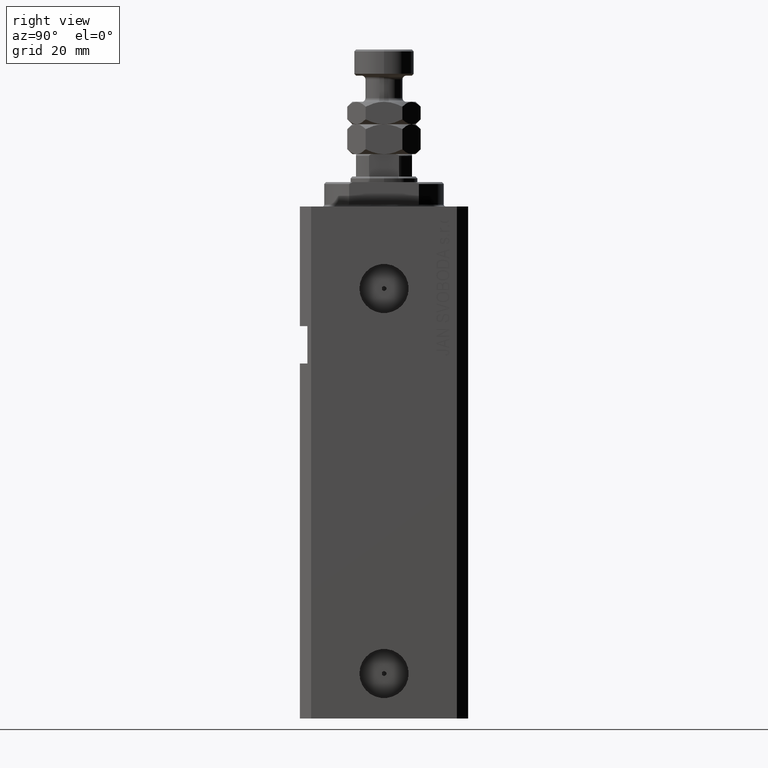
[diagram: clean part render]
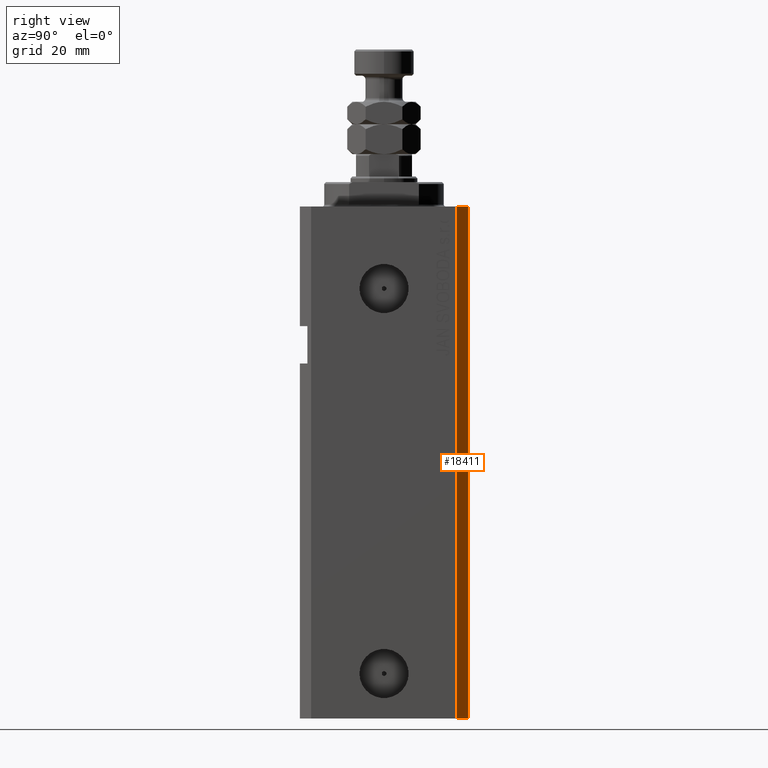
[diagram: same view with one face highlighted and labeled with its STEP entity id]
A machine part, right view. The second image highlights one B-rep face of the part: STEP entity #18411.
In plain terms, the highlighted planar face has unit normal (0.7071, 0.7071, 0).
Its self-contained STEP definition (entity closure, byte-faithful):
#1038 = DIRECTION ( 'NONE',  ( 0.000000000000000000, 0.000000000000000000, 1.000000000000000000 ) ) ;
#2325 = VECTOR ( 'NONE', #1038, 1000.000000000000000 ) ;
#3137 = LINE ( 'NONE', #17099, #11484 ) ;
#5776 = ORIENTED_EDGE ( 'NONE', *, *, #6731, .F. ) ;
#6731 = EDGE_CURVE ( 'NONE', #15034, #10424, #10962, .T. ) ;
#7275 = ORIENTED_EDGE ( 'NONE', *, *, #9339, .F. ) ;
#7629 = DIRECTION ( 'NONE',  ( 0.000000000000000000, 0.000000000000000000, 1.000000000000000000 ) ) ;
#7665 = CARTESIAN_POINT ( 'NONE',  ( 29.49999999999707967, 22.49999999999951328, -137.0000000000000000 ) ) ;
#9339 = EDGE_CURVE ( 'NONE', #10424, #43437, #3137, .T. ) ;
#10424 = VERTEX_POINT ( 'NONE', #23636 ) ;
#10722 = CARTESIAN_POINT ( 'NONE',  ( 32.49999999999702993, 19.49999999999945999, -137.0000000000000000 ) ) ;
#10962 = LINE ( 'NONE', #10722, #19729 ) ;
#11484 = VECTOR ( 'NONE', #38774, 1000.000000000000000 ) ;
#12362 = CARTESIAN_POINT ( 'NONE',  ( 29.49999999999707967, 22.49999999999951328, -137.0000000000000000 ) ) ;
#14864 = VERTEX_POINT ( 'NONE', #7665 ) ;
#15034 = VERTEX_POINT ( 'NONE', #26096 ) ;
#15579 = PLANE ( 'NONE',  #29634 ) ;
#16296 = DIRECTION ( 'NONE',  ( 0.7071067811865597852, 0.7071067811865353603, -0.000000000000000000 ) ) ;
#17099 = CARTESIAN_POINT ( 'NONE',  ( 32.49999999999702993, 19.49999999999945999, 0.000000000000000000 ) ) ;
#18411 = ADVANCED_FACE ( 'NONE', ( #26443 ), #15579, .T. ) ;
#18624 = ORIENTED_EDGE ( 'NONE', *, *, #35547, .T. ) ;
#19345 = DIRECTION ( 'NONE',  ( -0.7071067811865352493, 0.7071067811865597852, 0.000000000000000000 ) ) ;
#19593 = CARTESIAN_POINT ( 'NONE',  ( 32.49999999999702993, 19.49999999999945999, -137.0000000000000000 ) ) ;
#19729 = VECTOR ( 'NONE', #7629, 1000.000000000000000 ) ;
#23636 = CARTESIAN_POINT ( 'NONE',  ( 32.49999999999702993, 19.49999999999945999, 0.000000000000000000 ) ) ;
#26096 = CARTESIAN_POINT ( 'NONE',  ( 32.49999999999702993, 19.49999999999945999, -137.0000000000000000 ) ) ;
#26443 = FACE_OUTER_BOUND ( 'NONE', #43219, .T. ) ;
#29634 = AXIS2_PLACEMENT_3D ( 'NONE', #19593, #16296, #44342 ) ;
#35547 = EDGE_CURVE ( 'NONE', #15034, #14864, #44100, .T. ) ;
#36783 = VECTOR ( 'NONE', #19345, 1000.000000000000000 ) ;
#37057 = ORIENTED_EDGE ( 'NONE', *, *, #45358, .T. ) ;
#38774 = DIRECTION ( 'NONE',  ( -0.7071067811865352493, 0.7071067811865597852, 0.000000000000000000 ) ) ;
#40315 = CARTESIAN_POINT ( 'NONE',  ( 32.49999999999702993, 19.49999999999945999, -137.0000000000000000 ) ) ;
#41123 = LINE ( 'NONE', #12362, #2325 ) ;
#43219 = EDGE_LOOP ( 'NONE', ( #7275, #5776, #18624, #37057 ) ) ;
#43437 = VERTEX_POINT ( 'NONE', #44157 ) ;
#44100 = LINE ( 'NONE', #40315, #36783 ) ;
#44157 = CARTESIAN_POINT ( 'NONE',  ( 29.49999999999707967, 22.49999999999951328, 0.000000000000000000 ) ) ;
#44342 = DIRECTION ( 'NONE',  ( -0.7071067811865353603, 0.7071067811865597852, 0.000000000000000000 ) ) ;
#45358 = EDGE_CURVE ( 'NONE', #14864, #43437, #41123, .T. ) ;